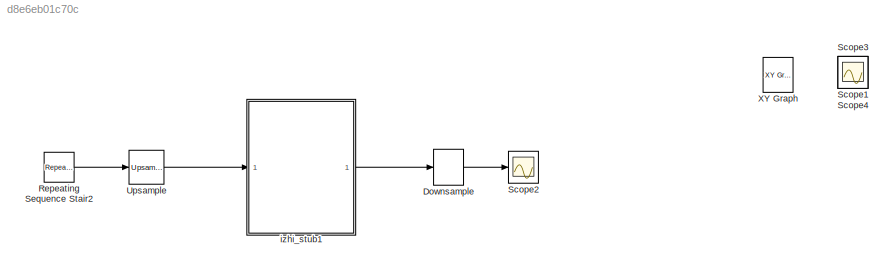
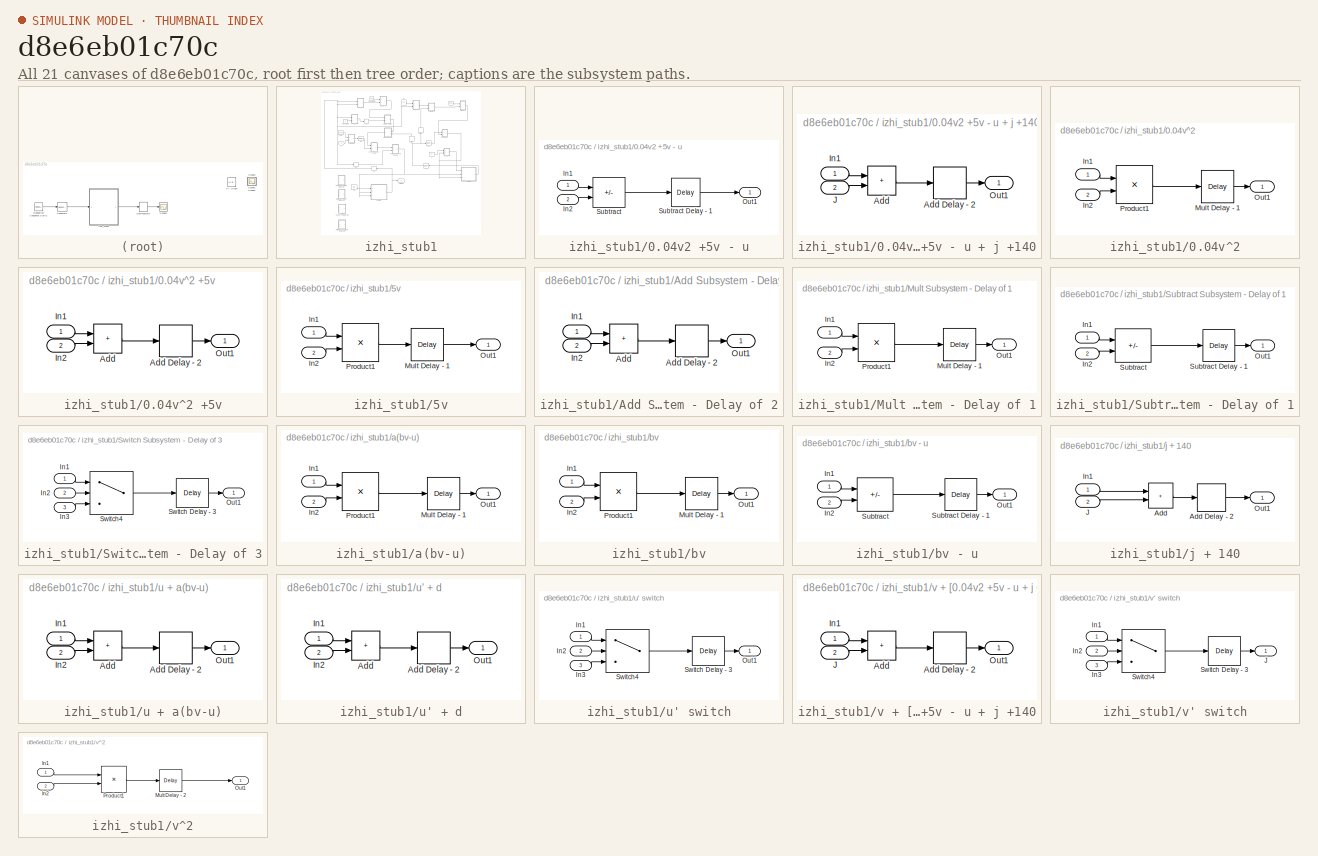
[diagram: thumbnail index - all 21 canvases of the model, root first then tree order]
MODEL slx_d8e6eb01c70c
KIND model
CONFIG AbsTol = auto
CONFIG EnableMultiTasking = off
CONFIG FixedStep = 0.001
CONFIG MaxStep = auto
CONFIG MinStep = auto
CONFIG RelTol = 1e-3
CONFIG SampleTimeConstraint = Unconstrained
CONFIG Solver = FixedStepAuto
CONFIG SolverName = FixedStepAuto
CONFIG StartTime = 0.0
CONFIG StopTime = 12
BLOCK [DownSample] Downsample
  InputProcessing = Elements as channels (sample based)
  N = 12
  RateOptions = Allow multirate processing
BLOCK [Reference] Repeating Sequence Stair2  REF=simulink/Sources/Repeating
Sequence
Stair
  Ports = [0, 1]
  SourceBlock = simulink/Sources/Repeating\nSequence\nStair
  SourceProductBaseCode = SL
  SourceType = Repeating Sequence Stair
BLOCK [Scope] Scope1
  Floating = off
  IOType = viewer
  NumInputPorts = 1
  Ports = []
  ScopeSpecificationString = Simulink.scopes.TimeScopeBlockCfg('CurrentConfiguration', extmgr.ConfigurationSet(extmgr.Configuration('Core','General UI',true),extmgr.Configuration('Core','Source UI',true),extmgr.Configuration('Sources','WiredSimulink',true,'DataLoggingVariableName','ScopeData1'),extmgr.Configuration('Visuals','Time Domain',true,'SerializedDisplays',{struct('MinYLimReal','-0.24987','MaxYLimReal','2.24887','YLab...<+1436ch>
BLOCK [Scope] Scope2
  Floating = off
  NumInputPorts = 1
  Ports = [1]
  ScopeSpecificationString = Simulink.scopes.TimeScopeBlockCfg('CurrentConfiguration', extmgr.ConfigurationSet(extmgr.Configuration('Core','General UI',true),extmgr.Configuration('Core','Source UI',true),extmgr.Configuration('Sources','WiredSimulink',true,'DataLoggingVariableName','ScopeData1'),extmgr.Configuration('Visuals','Time Domain',true,'SerializedDisplays',{struct('MinYLimReal','-453.52175','MaxYLimReal','70.51651','Y...<+1541ch>
BLOCK [Scope] Scope3
  Floating = off
  IOType = viewer
  NumInputPorts = 1
  Ports = []
  ScopeSpecificationString = Simulink.scopes.TimeScopeBlockCfg('CurrentConfiguration', extmgr.ConfigurationSet(extmgr.Configuration('Core','General UI',true),extmgr.Configuration('Core','Source UI',true),extmgr.Configuration('Sources','WiredSimulink',true,'DataLoggingVariableName','ScopeData3'),extmgr.Configuration('Visuals','Time Domain',true,'SerializedDisplays',{struct('MinYLimReal','-103.72127','MaxYLimReal','38.33358','Y...<+1371ch>
BLOCK [Scope] Scope4
  Floating = off
  IOType = viewer
  NumInputPorts = 1
  Ports = []
  ScopeSpecificationString = Simulink.scopes.TimeScopeBlockCfg('CurrentConfiguration', extmgr.ConfigurationSet(extmgr.Configuration('Core','General UI',true),extmgr.Configuration('Core','Source UI',true),extmgr.Configuration('Sources','WiredSimulink',true,'DataLoggingVariableName','ScopeData4'),extmgr.Configuration('Visuals','Time Domain',true,'SerializedDisplays',{struct('MinYLimReal','-20.75486','MaxYLimReal','56.79378','YL...<+1365ch>
BLOCK [Reference] Upsample  REF=dspsigops/Upsample
  Ports = [1, 1]
  SourceBlock = dspsigops/Upsample
  SourceProductBaseCode = DS
  SourceType = Upsample
  UserDataPersistent = on
BLOCK [Reference] XY Graph  REF=simulink/Sinks/XY Graph
  IOType = viewer
  Ports = [2]
  SourceBlock = simulink/Sinks/XY Graph
  SourceProductBaseCode = SL
  SourceType = XY scope.
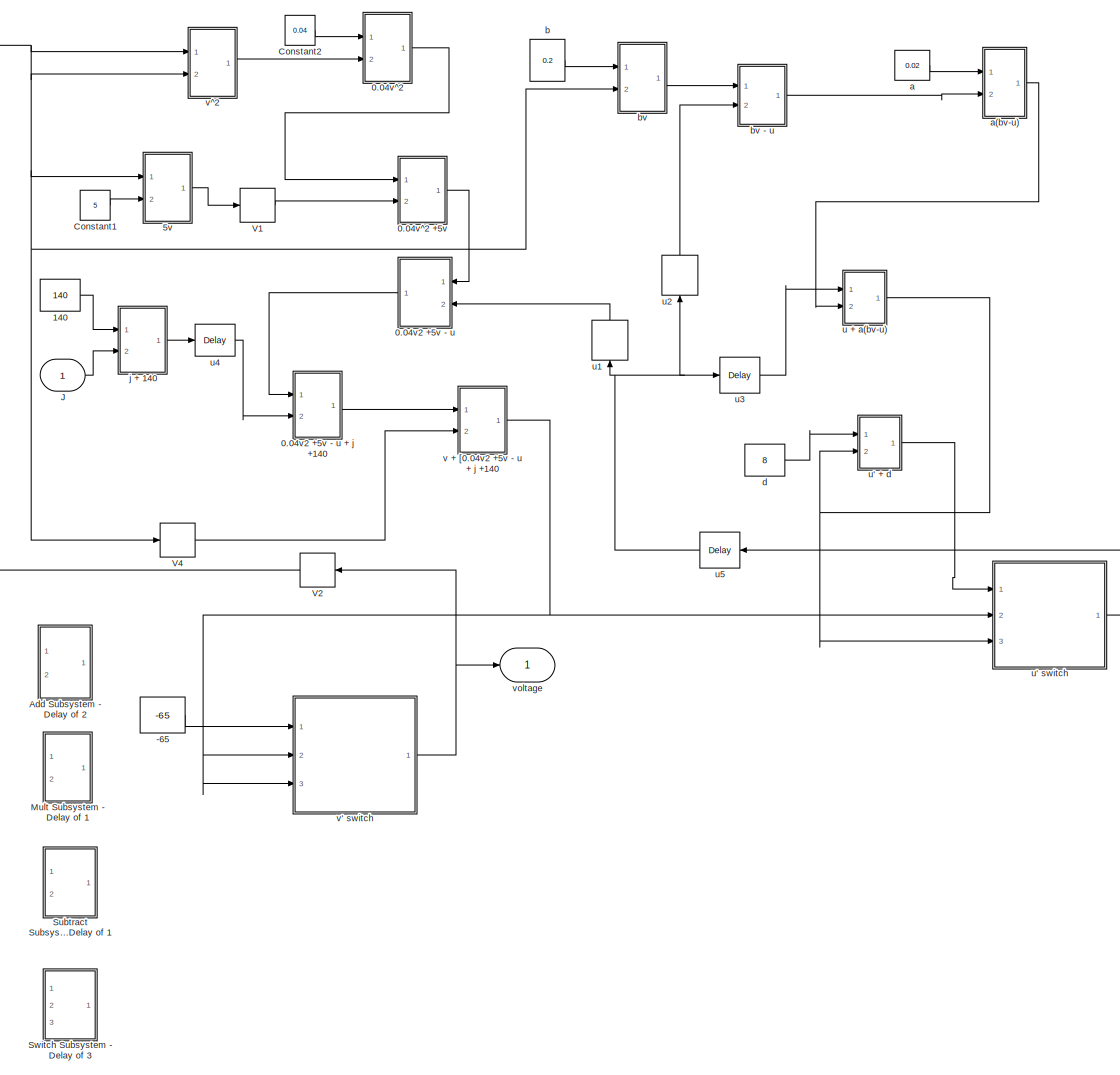
[diagram: izhi_stub1 - part 1/1, most of the canvas]
BLOCK [SubSystem] izhi_stub1
  Ports = [1, 1]
  RequestExecContextInheritance = off
BLOCK [Constant] izhi_stub1/-65
  Value = -65
BLOCK [SubSystem] izhi_stub1/0.04v2 +5v - u
  Ports = [2, 1]
  RequestExecContextInheritance = off
BLOCK [SubSystem] izhi_stub1/0.04v2 +5v - u + j +140
  Ports = [2, 1]
  RequestExecContextInheritance = off
BLOCK [Sum] izhi_stub1/0.04v2 +5v - u + j +140/Add
  IconShape = rectangular
  Ports = [2, 1]
BLOCK [Delay] izhi_stub1/0.04v2 +5v - u + j +140/Add Delay - 2
  InputPortMap = u0
  Ports = [1, 1]
BLOCK [Inport] izhi_stub1/0.04v2 +5v - u + j +140/In1
BLOCK [Inport] izhi_stub1/0.04v2 +5v - u + j +140/J
  Port = 2
BLOCK [Outport] izhi_stub1/0.04v2 +5v - u + j +140/Out1
BLOCK [Inport] izhi_stub1/0.04v2 +5v - u/In1
BLOCK [Inport] izhi_stub1/0.04v2 +5v - u/In2
  Port = 2
BLOCK [Outport] izhi_stub1/0.04v2 +5v - u/Out1
BLOCK [Sum] izhi_stub1/0.04v2 +5v - u/Subtract
  IconShape = rectangular
  Inputs = +-
  Ports = [2, 1]
BLOCK [Delay] izhi_stub1/0.04v2 +5v - u/Subtract Delay - 1
  DelayLength = 1
  InputPortMap = u0
  Ports = [1, 1]
BLOCK [SubSystem] izhi_stub1/0.04v^2
  Ports = [2, 1]
  RequestExecContextInheritance = off
BLOCK [SubSystem] izhi_stub1/0.04v^2 +5v
  Ports = [2, 1]
  RequestExecContextInheritance = off
BLOCK [Sum] izhi_stub1/0.04v^2 +5v/Add
  IconShape = rectangular
  Ports = [2, 1]
BLOCK [Delay] izhi_stub1/0.04v^2 +5v/Add Delay - 2
  InputPortMap = u0
  Ports = [1, 1]
BLOCK [Inport] izhi_stub1/0.04v^2 +5v/In1
BLOCK [Inport] izhi_stub1/0.04v^2 +5v/In2
  Port = 2
BLOCK [Outport] izhi_stub1/0.04v^2 +5v/Out1
BLOCK [Inport] izhi_stub1/0.04v^2/In1
BLOCK [Inport] izhi_stub1/0.04v^2/In2
  Port = 2
BLOCK [Delay] izhi_stub1/0.04v^2/Mult Delay - 1
  DelayLength = 1
  InputPortMap = u0
  Ports = [1, 1]
BLOCK [Outport] izhi_stub1/0.04v^2/Out1
BLOCK [Product] izhi_stub1/0.04v^2/Product1
  Ports = [2, 1]
BLOCK [Constant] izhi_stub1/140
  Value = 140
BLOCK [SubSystem] izhi_stub1/5v
  Ports = [2, 1]
  RequestExecContextInheritance = off
BLOCK [Inport] izhi_stub1/5v/In1
BLOCK [Inport] izhi_stub1/5v/In2
  Port = 2
BLOCK [Delay] izhi_stub1/5v/Mult Delay - 1
  DelayLength = 1
  InputPortMap = u0
  Ports = [1, 1]
BLOCK [Outport] izhi_stub1/5v/Out1
BLOCK [Product] izhi_stub1/5v/Product1
  Ports = [2, 1]
BLOCK [SubSystem] izhi_stub1/Add Subsystem - Delay of 2
  Commented = on
  Ports = [2, 1]
  RequestExecContextInheritance = off
BLOCK [Sum] izhi_stub1/Add Subsystem - Delay of 2/Add
  IconShape = rectangular
  Ports = [2, 1]
BLOCK [Delay] izhi_stub1/Add Subsystem - Delay of 2/Add Delay - 2
  InputPortMap = u0
  Ports = [1, 1]
BLOCK [Inport] izhi_stub1/Add Subsystem - Delay of 2/In1
BLOCK [Inport] izhi_stub1/Add Subsystem - Delay of 2/In2
  Port = 2
BLOCK [Outport] izhi_stub1/Add Subsystem - Delay of 2/Out1
BLOCK [Constant] izhi_stub1/Constant1
  Value = 5
BLOCK [Constant] izhi_stub1/Constant2
  Value = 0.04
BLOCK [Inport] izhi_stub1/J
BLOCK [SubSystem] izhi_stub1/Mult Subsystem - Delay of 1
  Commented = on
  Ports = [2, 1]
  RequestExecContextInheritance = off
BLOCK [Inport] izhi_stub1/Mult Subsystem - Delay of 1/In1
BLOCK [Inport] izhi_stub1/Mult Subsystem - Delay of 1/In2
  Port = 2
BLOCK [Delay] izhi_stub1/Mult Subsystem - Delay of 1/Mult Delay - 1
  DelayLength = 1
  InputPortMap = u0
  Ports = [1, 1]
BLOCK [Outport] izhi_stub1/Mult Subsystem - Delay of 1/Out1
BLOCK [Product] izhi_stub1/Mult Subsystem - Delay of 1/Product1
  Ports = [2, 1]
BLOCK [SubSystem] izhi_stub1/Subtract Subsystem - Delay of 1
  Commented = on
  Ports = [2, 1]
  RequestExecContextInheritance = off
BLOCK [Inport] izhi_stub1/Subtract Subsystem - Delay of 1/In1
BLOCK [Inport] izhi_stub1/Subtract Subsystem - Delay of 1/In2
  Port = 2
BLOCK [Outport] izhi_stub1/Subtract Subsystem - Delay of 1/Out1
BLOCK [Sum] izhi_stub1/Subtract Subsystem - Delay of 1/Subtract
  IconShape = rectangular
  Inputs = +-
  Ports = [2, 1]
BLOCK [Delay] izhi_stub1/Subtract Subsystem - Delay of 1/Subtract Delay - 1
  DelayLength = 1
  InputPortMap = u0
  Ports = [1, 1]
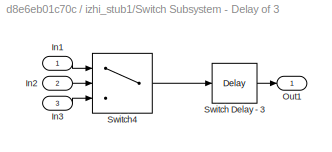
BLOCK [SubSystem] izhi_stub1/Switch Subsystem - Delay of 3
  Commented = on
  Ports = [3, 1]
  RequestExecContextInheritance = off
BLOCK [Inport] izhi_stub1/Switch Subsystem - Delay of 3/In1
BLOCK [Inport] izhi_stub1/Switch Subsystem - Delay of 3/In2
  Port = 2
BLOCK [Inport] izhi_stub1/Switch Subsystem - Delay of 3/In3
  Port = 3
BLOCK [Outport] izhi_stub1/Switch Subsystem - Delay of 3/Out1
BLOCK [Delay] izhi_stub1/Switch Subsystem - Delay of 3/Switch Delay - 3
  DelayLength = 3
  InputPortMap = u0
  Ports = [1, 1]
BLOCK [Switch] izhi_stub1/Switch Subsystem - Delay of 3/Switch4
  Criteria = u2 > Threshold
  InputSameDT = off
  SaturateOnIntegerOverflow = off
BLOCK [Delay] izhi_stub1/V1
  DelayLength = 1
  InitialCondition = 0
  InputPortMap = u0
  Ports = [1, 1]
BLOCK [Delay] izhi_stub1/V2
  InitialCondition = 0
  InputPortMap = u0
  NameLocation = top
  Ports = [1, 1]
BLOCK [Delay] izhi_stub1/V4
  DelayLength = 7
  InitialCondition = 0
  InputPortMap = u0
  NameLocation = top
  Ports = [1, 1]
BLOCK [Constant] izhi_stub1/a
  Value = 0.02
BLOCK [SubSystem] izhi_stub1/a(bv-u)
  Ports = [2, 1]
  RequestExecContextInheritance = off
BLOCK [Inport] izhi_stub1/a(bv-u)/In1
BLOCK [Inport] izhi_stub1/a(bv-u)/In2
  Port = 2
BLOCK [Delay] izhi_stub1/a(bv-u)/Mult Delay - 1
  DelayLength = 1
  InputPortMap = u0
  Ports = [1, 1]
BLOCK [Outport] izhi_stub1/a(bv-u)/Out1
BLOCK [Product] izhi_stub1/a(bv-u)/Product1
  Ports = [2, 1]
BLOCK [Constant] izhi_stub1/b
  Value = 0.2
BLOCK [SubSystem] izhi_stub1/bv
  Ports = [2, 1]
  RequestExecContextInheritance = off
BLOCK [SubSystem] izhi_stub1/bv - u
  Ports = [2, 1]
  RequestExecContextInheritance = off
BLOCK [Inport] izhi_stub1/bv - u/In1
BLOCK [Inport] izhi_stub1/bv - u/In2
  Port = 2
BLOCK [Outport] izhi_stub1/bv - u/Out1
BLOCK [Sum] izhi_stub1/bv - u/Subtract
  IconShape = rectangular
  Inputs = +-
  Ports = [2, 1]
BLOCK [Delay] izhi_stub1/bv - u/Subtract Delay - 1
  DelayLength = 1
  InputPortMap = u0
  Ports = [1, 1]
BLOCK [Inport] izhi_stub1/bv/In1
BLOCK [Inport] izhi_stub1/bv/In2
  Port = 2
BLOCK [Delay] izhi_stub1/bv/Mult Delay - 1
  DelayLength = 1
  InputPortMap = u0
  Ports = [1, 1]
BLOCK [Outport] izhi_stub1/bv/Out1
BLOCK [Product] izhi_stub1/bv/Product1
  Ports = [2, 1]
BLOCK [Constant] izhi_stub1/d
  Value = 8
BLOCK [SubSystem] izhi_stub1/j + 140
  Ports = [2, 1]
  RequestExecContextInheritance = off
BLOCK [Sum] izhi_stub1/j + 140/Add
  IconShape = rectangular
  Ports = [2, 1]
BLOCK [Delay] izhi_stub1/j + 140/Add Delay - 2
  InputPortMap = u0
  Ports = [1, 1]
BLOCK [Inport] izhi_stub1/j + 140/In1
BLOCK [Inport] izhi_stub1/j + 140/J
  Port = 2
BLOCK [Outport] izhi_stub1/j + 140/Out1
BLOCK [SubSystem] izhi_stub1/u + a(bv-u)
  Ports = [2, 1]
  RequestExecContextInheritance = off
BLOCK [Sum] izhi_stub1/u + a(bv-u)/Add
  IconShape = rectangular
  Ports = [2, 1]
BLOCK [Delay] izhi_stub1/u + a(bv-u)/Add Delay - 2
  InputPortMap = u0
  Ports = [1, 1]
BLOCK [Inport] izhi_stub1/u + a(bv-u)/In1
BLOCK [Inport] izhi_stub1/u + a(bv-u)/In2
  Port = 2
BLOCK [Outport] izhi_stub1/u + a(bv-u)/Out1
BLOCK [SubSystem] izhi_stub1/u' + d
  Ports = [2, 1]
  RequestExecContextInheritance = off
BLOCK [Sum] izhi_stub1/u' + d/Add
  IconShape = rectangular
  Ports = [2, 1]
BLOCK [Delay] izhi_stub1/u' + d/Add Delay - 2
  InputPortMap = u0
  Ports = [1, 1]
BLOCK [Inport] izhi_stub1/u' + d/In1
BLOCK [Inport] izhi_stub1/u' + d/In2
  Port = 2
BLOCK [Outport] izhi_stub1/u' + d/Out1
BLOCK [SubSystem] izhi_stub1/u' switch
  Ports = [3, 1]
  RequestExecContextInheritance = off
BLOCK [Inport] izhi_stub1/u' switch/In1
BLOCK [Inport] izhi_stub1/u' switch/In2
  Port = 2
BLOCK [Inport] izhi_stub1/u' switch/In3
  Port = 3
BLOCK [Outport] izhi_stub1/u' switch/Out1
BLOCK [Delay] izhi_stub1/u' switch/Switch Delay - 3
  DelayLength = 3
  InputPortMap = u0
  Ports = [1, 1]
BLOCK [Switch] izhi_stub1/u' switch/Switch4
  Criteria = u2 > Threshold
  InputSameDT = off
  SaturateOnIntegerOverflow = off
  Threshold = 30
BLOCK [Delay] izhi_stub1/u1
  DelayLength = 4
  InitialCondition = 0
  InputPortMap = u0
  NameLocation = right
  Ports = [1, 1]
BLOCK [Delay] izhi_stub1/u2
  DelayLength = 1
  InitialCondition = 0
  InputPortMap = u0
  NameLocation = right
  Ports = [1, 1]
BLOCK [Delay] izhi_stub1/u3
  InitialCondition = 0
  InputPortMap = u0
  Ports = [1, 1]
BLOCK [Delay] izhi_stub1/u4
  DelayLength = 7
  InitialCondition = 0
  InputPortMap = u0
  NameLocation = top
  Ports = [1, 1]
BLOCK [Delay] izhi_stub1/u5
  DelayLength = 5
  InitialCondition = 0
  InputPortMap = u0
  NameLocation = top
  Ports = [1, 1]
BLOCK [SubSystem] izhi_stub1/v + [0.04v2 +5v - u + j +140
  Ports = [2, 1]
  RequestExecContextInheritance = off
BLOCK [Sum] izhi_stub1/v + [0.04v2 +5v - u + j +140/Add
  IconShape = rectangular
  Ports = [2, 1]
BLOCK [Delay] izhi_stub1/v + [0.04v2 +5v - u + j +140/Add Delay - 2
  InputPortMap = u0
  Ports = [1, 1]
BLOCK [Inport] izhi_stub1/v + [0.04v2 +5v - u + j +140/In1
BLOCK [Inport] izhi_stub1/v + [0.04v2 +5v - u + j +140/J
  Port = 2
BLOCK [Outport] izhi_stub1/v + [0.04v2 +5v - u + j +140/Out1
BLOCK [SubSystem] izhi_stub1/v' switch
  Ports = [3, 1]
  RequestExecContextInheritance = off
BLOCK [Inport] izhi_stub1/v' switch/In1
BLOCK [Inport] izhi_stub1/v' switch/In2
  Port = 2
BLOCK [Inport] izhi_stub1/v' switch/In3
  Port = 3
BLOCK [Outport] izhi_stub1/v' switch/J
BLOCK [Delay] izhi_stub1/v' switch/Switch Delay - 3
  DelayLength = 3
  InputPortMap = u0
  Ports = [1, 1]
BLOCK [Switch] izhi_stub1/v' switch/Switch4
  Criteria = u2 > Threshold
  InputSameDT = off
  SaturateOnIntegerOverflow = off
  Threshold = 30
BLOCK [SubSystem] izhi_stub1/v^2
  Ports = [2, 1]
  RequestExecContextInheritance = off
BLOCK [Inport] izhi_stub1/v^2/In1
BLOCK [Inport] izhi_stub1/v^2/In2
  Port = 2
BLOCK [Delay] izhi_stub1/v^2/Mult Delay - 2
  DelayLength = 1
  InputPortMap = u0
  Ports = [1, 1]
BLOCK [Outport] izhi_stub1/v^2/Out1
BLOCK [Product] izhi_stub1/v^2/Product1
  Ports = [2, 1]
BLOCK [Outport] izhi_stub1/voltage
  VectorParamsAs1DForOutWhenUnconnected = off
LINE Downsample:1 -> Scope2:1
LINE Repeating Sequence Stair2:1 -> Upsample:1
LINE Upsample:1 -> izhi_stub1:1
LINE izhi_stub1/-65:1 -> izhi_stub1/v' switch:1
LINE izhi_stub1/0.04v2 +5v - u + j +140/Add Delay - 2:1 -> izhi_stub1/0.04v2 +5v - u + j +140/Out1:1
LINE izhi_stub1/0.04v2 +5v - u + j +140/Add:1 -> izhi_stub1/0.04v2 +5v - u + j +140/Add Delay - 2:1
LINE izhi_stub1/0.04v2 +5v - u + j +140/In1:1 -> izhi_stub1/0.04v2 +5v - u + j +140/Add:1
LINE izhi_stub1/0.04v2 +5v - u + j +140/J:1 -> izhi_stub1/0.04v2 +5v - u + j +140/Add:2
LINE izhi_stub1/0.04v2 +5v - u + j +140:1 -> izhi_stub1/v + [0.04v2 +5v - u + j +140:1
LINE izhi_stub1/0.04v2 +5v - u/In1:1 -> izhi_stub1/0.04v2 +5v - u/Subtract:1
LINE izhi_stub1/0.04v2 +5v - u/In2:1 -> izhi_stub1/0.04v2 +5v - u/Subtract:2
LINE izhi_stub1/0.04v2 +5v - u/Subtract Delay - 1:1 -> izhi_stub1/0.04v2 +5v - u/Out1:1
LINE izhi_stub1/0.04v2 +5v - u/Subtract:1 -> izhi_stub1/0.04v2 +5v - u/Subtract Delay - 1:1
LINE izhi_stub1/0.04v2 +5v - u:1 -> izhi_stub1/0.04v2 +5v - u + j +140:1
LINE izhi_stub1/0.04v^2 +5v/Add Delay - 2:1 -> izhi_stub1/0.04v^2 +5v/Out1:1
LINE izhi_stub1/0.04v^2 +5v/Add:1 -> izhi_stub1/0.04v^2 +5v/Add Delay - 2:1
LINE izhi_stub1/0.04v^2 +5v/In1:1 -> izhi_stub1/0.04v^2 +5v/Add:1
LINE izhi_stub1/0.04v^2 +5v/In2:1 -> izhi_stub1/0.04v^2 +5v/Add:2
LINE izhi_stub1/0.04v^2 +5v:1 -> izhi_stub1/0.04v2 +5v - u:1
LINE izhi_stub1/0.04v^2/In1:1 -> izhi_stub1/0.04v^2/Product1:1
LINE izhi_stub1/0.04v^2/In2:1 -> izhi_stub1/0.04v^2/Product1:2
LINE izhi_stub1/0.04v^2/Mult Delay - 1:1 -> izhi_stub1/0.04v^2/Out1:1
LINE izhi_stub1/0.04v^2/Product1:1 -> izhi_stub1/0.04v^2/Mult Delay - 1:1
LINE izhi_stub1/0.04v^2:1 -> izhi_stub1/0.04v^2 +5v:1
LINE izhi_stub1/140:1 -> izhi_stub1/j + 140:1
LINE izhi_stub1/5v/In1:1 -> izhi_stub1/5v/Product1:1
LINE izhi_stub1/5v/In2:1 -> izhi_stub1/5v/Product1:2
LINE izhi_stub1/5v/Mult Delay - 1:1 -> izhi_stub1/5v/Out1:1
LINE izhi_stub1/5v/Product1:1 -> izhi_stub1/5v/Mult Delay - 1:1
LINE izhi_stub1/5v:1 -> izhi_stub1/V1:1
LINE izhi_stub1/Add Subsystem - Delay of 2/Add Delay - 2:1 -> izhi_stub1/Add Subsystem - Delay of 2/Out1:1
LINE izhi_stub1/Add Subsystem - Delay of 2/Add:1 -> izhi_stub1/Add Subsystem - Delay of 2/Add Delay - 2:1
LINE izhi_stub1/Add Subsystem - Delay of 2/In1:1 -> izhi_stub1/Add Subsystem - Delay of 2/Add:1
LINE izhi_stub1/Add Subsystem - Delay of 2/In2:1 -> izhi_stub1/Add Subsystem - Delay of 2/Add:2
LINE izhi_stub1/Constant1:1 -> izhi_stub1/5v:2
LINE izhi_stub1/Constant2:1 -> izhi_stub1/0.04v^2:1
LINE izhi_stub1/J:1 -> izhi_stub1/j + 140:2
LINE izhi_stub1/Mult Subsystem - Delay of 1/In1:1 -> izhi_stub1/Mult Subsystem - Delay of 1/Product1:1
LINE izhi_stub1/Mult Subsystem - Delay of 1/In2:1 -> izhi_stub1/Mult Subsystem - Delay of 1/Product1:2
LINE izhi_stub1/Mult Subsystem - Delay of 1/Mult Delay - 1:1 -> izhi_stub1/Mult Subsystem - Delay of 1/Out1:1
LINE izhi_stub1/Mult Subsystem - Delay of 1/Product1:1 -> izhi_stub1/Mult Subsystem - Delay of 1/Mult Delay - 1:1
LINE izhi_stub1/Subtract Subsystem - Delay of 1/In1:1 -> izhi_stub1/Subtract Subsystem - Delay of 1/Subtract:1
LINE izhi_stub1/Subtract Subsystem - Delay of 1/In2:1 -> izhi_stub1/Subtract Subsystem - Delay of 1/Subtract:2
LINE izhi_stub1/Subtract Subsystem - Delay of 1/Subtract Delay - 1:1 -> izhi_stub1/Subtract Subsystem - Delay of 1/Out1:1
LINE izhi_stub1/Subtract Subsystem - Delay of 1/Subtract:1 -> izhi_stub1/Subtract Subsystem - Delay of 1/Subtract Delay - 1:1
LINE izhi_stub1/Switch Subsystem - Delay of 3/In1:1 -> izhi_stub1/Switch Subsystem - Delay of 3/Switch4:1
LINE izhi_stub1/Switch Subsystem - Delay of 3/In2:1 -> izhi_stub1/Switch Subsystem - Delay of 3/Switch4:2
LINE izhi_stub1/Switch Subsystem - Delay of 3/In3:1 -> izhi_stub1/Switch Subsystem - Delay of 3/Switch4:3
LINE izhi_stub1/Switch Subsystem - Delay of 3/Switch Delay - 3:1 -> izhi_stub1/Switch Subsystem - Delay of 3/Out1:1
LINE izhi_stub1/Switch Subsystem - Delay of 3/Switch4:1 -> izhi_stub1/Switch Subsystem - Delay of 3/Switch Delay - 3:1
LINE izhi_stub1/V1:1 -> izhi_stub1/0.04v^2 +5v:2
NET izhi_stub1/V2:1 -> izhi_stub1/5v:1, izhi_stub1/V4:1, izhi_stub1/bv:2, izhi_stub1/v^2:1, izhi_stub1/v^2:2
LINE izhi_stub1/V4:1 -> izhi_stub1/v + [0.04v2 +5v - u + j +140:2
LINE izhi_stub1/a(bv-u)/In1:1 -> izhi_stub1/a(bv-u)/Product1:1
LINE izhi_stub1/a(bv-u)/In2:1 -> izhi_stub1/a(bv-u)/Product1:2
LINE izhi_stub1/a(bv-u)/Mult Delay - 1:1 -> izhi_stub1/a(bv-u)/Out1:1
LINE izhi_stub1/a(bv-u)/Product1:1 -> izhi_stub1/a(bv-u)/Mult Delay - 1:1
LINE izhi_stub1/a(bv-u):1 -> izhi_stub1/u + a(bv-u):2
LINE izhi_stub1/a:1 -> izhi_stub1/a(bv-u):1
LINE izhi_stub1/b:1 -> izhi_stub1/bv:1
LINE izhi_stub1/bv - u/In1:1 -> izhi_stub1/bv - u/Subtract:1
LINE izhi_stub1/bv - u/In2:1 -> izhi_stub1/bv - u/Subtract:2
LINE izhi_stub1/bv - u/Subtract Delay - 1:1 -> izhi_stub1/bv - u/Out1:1
LINE izhi_stub1/bv - u/Subtract:1 -> izhi_stub1/bv - u/Subtract Delay - 1:1
LINE izhi_stub1/bv - u:1 -> izhi_stub1/a(bv-u):2
LINE izhi_stub1/bv/In1:1 -> izhi_stub1/bv/Product1:1
LINE izhi_stub1/bv/In2:1 -> izhi_stub1/bv/Product1:2
LINE izhi_stub1/bv/Mult Delay - 1:1 -> izhi_stub1/bv/Out1:1
LINE izhi_stub1/bv/Product1:1 -> izhi_stub1/bv/Mult Delay - 1:1
LINE izhi_stub1/bv:1 -> izhi_stub1/bv - u:1
LINE izhi_stub1/d:1 -> izhi_stub1/u' + d:1
LINE izhi_stub1/j + 140/Add Delay - 2:1 -> izhi_stub1/j + 140/Out1:1
LINE izhi_stub1/j + 140/Add:1 -> izhi_stub1/j + 140/Add Delay - 2:1
LINE izhi_stub1/j + 140/In1:1 -> izhi_stub1/j + 140/Add:1
LINE izhi_stub1/j + 140/J:1 -> izhi_stub1/j + 140/Add:2
LINE izhi_stub1/j + 140:1 -> izhi_stub1/u4:1
LINE izhi_stub1/u + a(bv-u)/Add Delay - 2:1 -> izhi_stub1/u + a(bv-u)/Out1:1
LINE izhi_stub1/u + a(bv-u)/Add:1 -> izhi_stub1/u + a(bv-u)/Add Delay - 2:1
LINE izhi_stub1/u + a(bv-u)/In1:1 -> izhi_stub1/u + a(bv-u)/Add:1
LINE izhi_stub1/u + a(bv-u)/In2:1 -> izhi_stub1/u + a(bv-u)/Add:2
NET izhi_stub1/u + a(bv-u):1 -> izhi_stub1/u' + d:2, izhi_stub1/u' switch:3
LINE izhi_stub1/u' + d/Add Delay - 2:1 -> izhi_stub1/u' + d/Out1:1
LINE izhi_stub1/u' + d/Add:1 -> izhi_stub1/u' + d/Add Delay - 2:1
LINE izhi_stub1/u' + d/In1:1 -> izhi_stub1/u' + d/Add:1
LINE izhi_stub1/u' + d/In2:1 -> izhi_stub1/u' + d/Add:2
LINE izhi_stub1/u' + d:1 -> izhi_stub1/u' switch:1
LINE izhi_stub1/u' switch/In1:1 -> izhi_stub1/u' switch/Switch4:1
LINE izhi_stub1/u' switch/In2:1 -> izhi_stub1/u' switch/Switch4:2
LINE izhi_stub1/u' switch/In3:1 -> izhi_stub1/u' switch/Switch4:3
LINE izhi_stub1/u' switch/Switch Delay - 3:1 -> izhi_stub1/u' switch/Out1:1
LINE izhi_stub1/u' switch/Switch4:1 -> izhi_stub1/u' switch/Switch Delay - 3:1
LINE izhi_stub1/u' switch:1 -> izhi_stub1/u5:1
LINE izhi_stub1/u1:1 -> izhi_stub1/0.04v2 +5v - u:2
LINE izhi_stub1/u2:1 -> izhi_stub1/bv - u:2
LINE izhi_stub1/u3:1 -> izhi_stub1/u + a(bv-u):1
LINE izhi_stub1/u4:1 -> izhi_stub1/0.04v2 +5v - u + j +140:2
NET izhi_stub1/u5:1 -> izhi_stub1/u1:1, izhi_stub1/u2:1, izhi_stub1/u3:1
LINE izhi_stub1/v + [0.04v2 +5v - u + j +140/Add Delay - 2:1 -> izhi_stub1/v + [0.04v2 +5v - u + j +140/Out1:1
LINE izhi_stub1/v + [0.04v2 +5v - u + j +140/Add:1 -> izhi_stub1/v + [0.04v2 +5v - u + j +140/Add Delay - 2:1
LINE izhi_stub1/v + [0.04v2 +5v - u + j +140/In1:1 -> izhi_stub1/v + [0.04v2 +5v - u + j +140/Add:1
LINE izhi_stub1/v + [0.04v2 +5v - u + j +140/J:1 -> izhi_stub1/v + [0.04v2 +5v - u + j +140/Add:2
NET izhi_stub1/v + [0.04v2 +5v - u + j +140:1 -> izhi_stub1/u' switch:2, izhi_stub1/v' switch:2, izhi_stub1/v' switch:3
LINE izhi_stub1/v' switch/In1:1 -> izhi_stub1/v' switch/Switch4:1
LINE izhi_stub1/v' switch/In2:1 -> izhi_stub1/v' switch/Switch4:2
LINE izhi_stub1/v' switch/In3:1 -> izhi_stub1/v' switch/Switch4:3
LINE izhi_stub1/v' switch/Switch Delay - 3:1 -> izhi_stub1/v' switch/J:1
LINE izhi_stub1/v' switch/Switch4:1 -> izhi_stub1/v' switch/Switch Delay - 3:1
NET izhi_stub1/v' switch:1 -> izhi_stub1/V2:1, izhi_stub1/voltage:1
LINE izhi_stub1/v^2/In1:1 -> izhi_stub1/v^2/Product1:1
LINE izhi_stub1/v^2/In2:1 -> izhi_stub1/v^2/Product1:2
LINE izhi_stub1/v^2/Mult Delay - 2:1 -> izhi_stub1/v^2/Out1:1
LINE izhi_stub1/v^2/Product1:1 -> izhi_stub1/v^2/Mult Delay - 2:1
LINE izhi_stub1/v^2:1 -> izhi_stub1/0.04v^2:2
LINE izhi_stub1:1 -> Downsample:1
note: NET lines group one-source signal fan-out (src -> all destinations, sorted); 1:1 wires keep LINE
